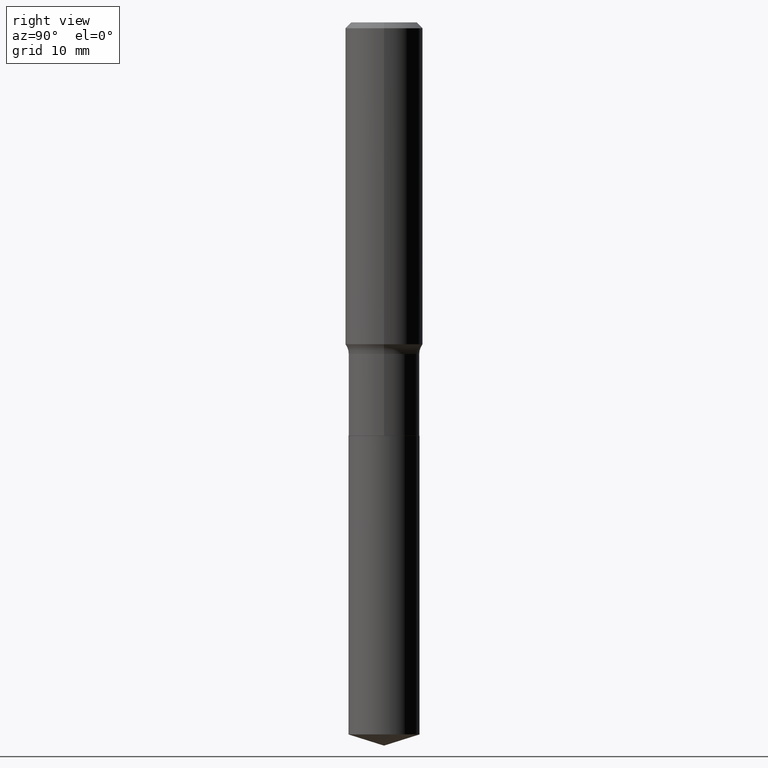
[diagram: clean part render]
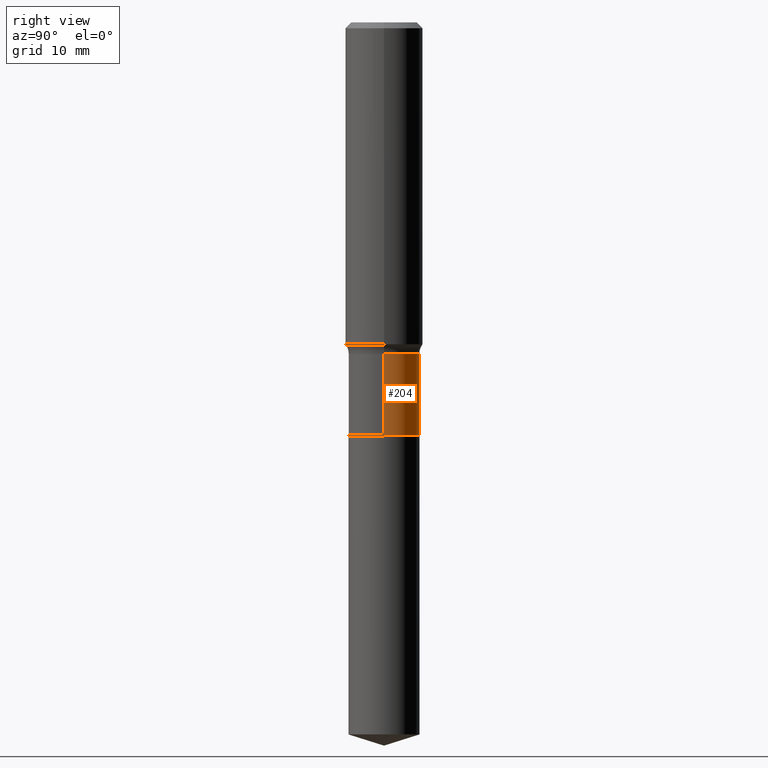
[diagram: same view with one face highlighted and labeled with its STEP entity id]
A machine part, right view. The second image highlights one B-rep face of the part: STEP entity #204.
In plain terms, the highlighted cylindrical surface (edge-blend (fillet) strip) has radius 4.3663 mm, axis along (-0, 0, 1).
Its self-contained STEP definition (entity closure, byte-faithful):
#19 = VERTEX_POINT ( 'NONE', #367 ) ;
#35 = DIRECTION ( 'NONE',  ( -2.445468806185136877E-29, 3.491481338843145188E-15, 1.000000000000000000 ) ) ;
#45 = ORIENTED_EDGE ( 'NONE', *, *, #332, .T. ) ;
#49 = EDGE_LOOP ( 'NONE', ( #59, #45, #369, #484 ) ) ;
#58 = CARTESIAN_POINT ( 'NONE',  ( -0.1718999999999999417, 1.221422962771611806E-15, -8.455649420148180377E-30 ) ) ;
#59 = ORIENTED_EDGE ( 'NONE', *, *, #415, .T. ) ;
#68 = CARTESIAN_POINT ( 'NONE',  ( 3.923999246404669862E-29, -5.602430956307710923E-15, -1.604599999999999804 ) ) ;
#77 = EDGE_CURVE ( 'NONE', #200, #281, #290, .T. ) ;
#88 = CARTESIAN_POINT ( 'NONE',  ( 0.1718999999999999417, -1.200371284294268847E-15, 8.382147877593211677E-30 ) ) ;
#97 = DIRECTION ( 'NONE',  ( -2.445468806185136877E-29, 3.491481338843145188E-15, 1.000000000000000000 ) ) ;
#113 = AXIS2_PLACEMENT_3D ( 'NONE', #314, #455, #418 ) ;
#126 = CYLINDRICAL_SURFACE ( 'NONE', #113, 0.1718999999999999417 ) ;
#144 = VECTOR ( 'NONE', #97, 39.37007874015748143 ) ;
#148 = VERTEX_POINT ( 'NONE', #214 ) ;
#200 = VERTEX_POINT ( 'NONE', #265 ) ;
#204 = ADVANCED_FACE ( 'NONE', ( #310 ), #126, .T. ) ;
#214 = CARTESIAN_POINT ( 'NONE',  ( 0.1718999999999999695, -8.181588221311138114E-15, -1.999499999999999833 ) ) ;
#219 = DIRECTION ( 'NONE',  ( -2.445468806185136597E-29, 3.491481338843145583E-15, 1.000000000000000000 ) ) ;
#225 = CARTESIAN_POINT ( 'NONE',  ( -0.1718999999999999417, -5.070400983890677303E-15, -1.604599999999999804 ) ) ;
#250 = CARTESIAN_POINT ( 'NONE',  ( 4.889714877967179832E-29, -6.981216937016868873E-15, -1.999499999999999833 ) ) ;
#265 = CARTESIAN_POINT ( 'NONE',  ( 0.1718999999999999417, -6.802802240601980164E-15, -1.604599999999999804 ) ) ;
#281 = VERTEX_POINT ( 'NONE', #225 ) ;
#287 = EDGE_CURVE ( 'NONE', #148, #200, #379, .T. ) ;
#290 = CIRCLE ( 'NONE', #352, 0.1718999999999999417 ) ;
#308 = VECTOR ( 'NONE', #35, 39.37007874015748143 ) ;
#310 = FACE_OUTER_BOUND ( 'NONE', #49, .T. ) ;
#314 = CARTESIAN_POINT ( 'NONE',  ( 0.000000000000000000, 0.000000000000000000, 0.000000000000000000 ) ) ;
#328 = CIRCLE ( 'NONE', #336, 0.1718999999999999695 ) ;
#332 = EDGE_CURVE ( 'NONE', #19, #281, #433, .T. ) ;
#336 = AXIS2_PLACEMENT_3D ( 'NONE', #250, #405, #481 ) ;
#352 = AXIS2_PLACEMENT_3D ( 'NONE', #68, #219, #454 ) ;
#367 = CARTESIAN_POINT ( 'NONE',  ( -0.1718999999999999695, -5.070400983890676515E-15, -1.999499999999999833 ) ) ;
#369 = ORIENTED_EDGE ( 'NONE', *, *, #77, .F. ) ;
#379 = LINE ( 'NONE', #88, #308 ) ;
#405 = DIRECTION ( 'NONE',  ( -2.445468806185136597E-29, 3.491481338843145583E-15, 1.000000000000000000 ) ) ;
#415 = EDGE_CURVE ( 'NONE', #148, #19, #328, .T. ) ;
#418 = DIRECTION ( 'NONE',  ( 1.000000000000000000, -6.982962677686266711E-15, 4.876176775795936353E-29 ) ) ;
#433 = LINE ( 'NONE', #58, #144 ) ;
#454 = DIRECTION ( 'NONE',  ( 1.000000000000000000, -6.982962677686269077E-15, 0.000000000000000000 ) ) ;
#455 = DIRECTION ( 'NONE',  ( -2.445468806185136597E-29, 3.491481338843145583E-15, 1.000000000000000000 ) ) ;
#481 = DIRECTION ( 'NONE',  ( 1.000000000000000000, -6.982962677686268288E-15, 0.000000000000000000 ) ) ;
#484 = ORIENTED_EDGE ( 'NONE', *, *, #287, .F. ) ;